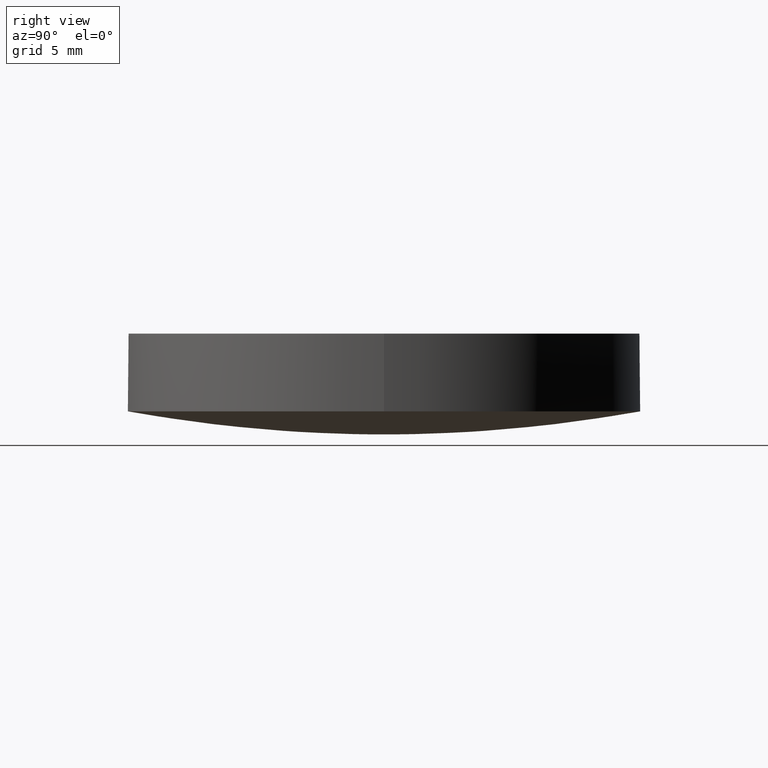
[diagram: clean part render]
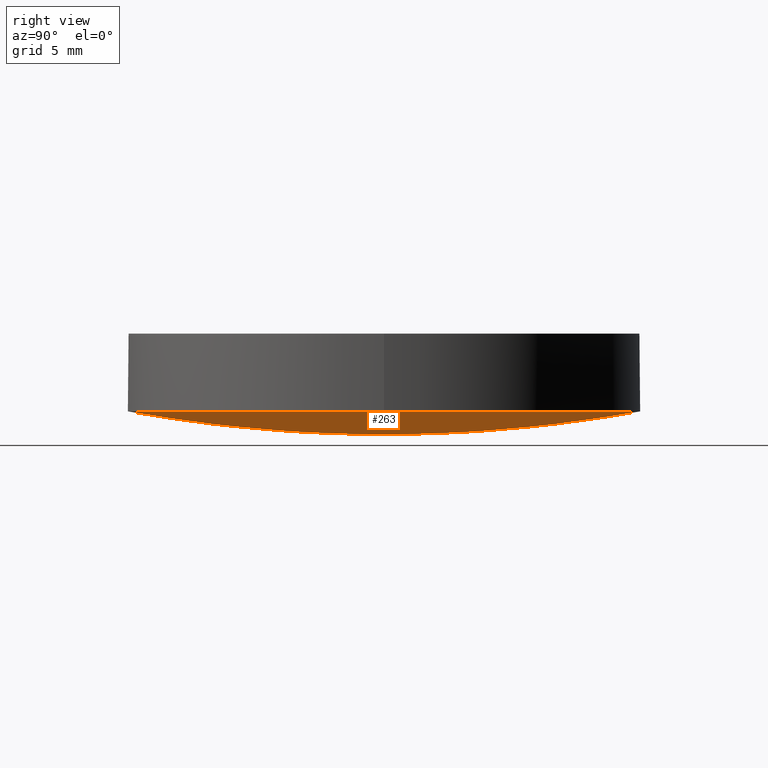
[diagram: same view with one face highlighted and labeled with its STEP entity id]
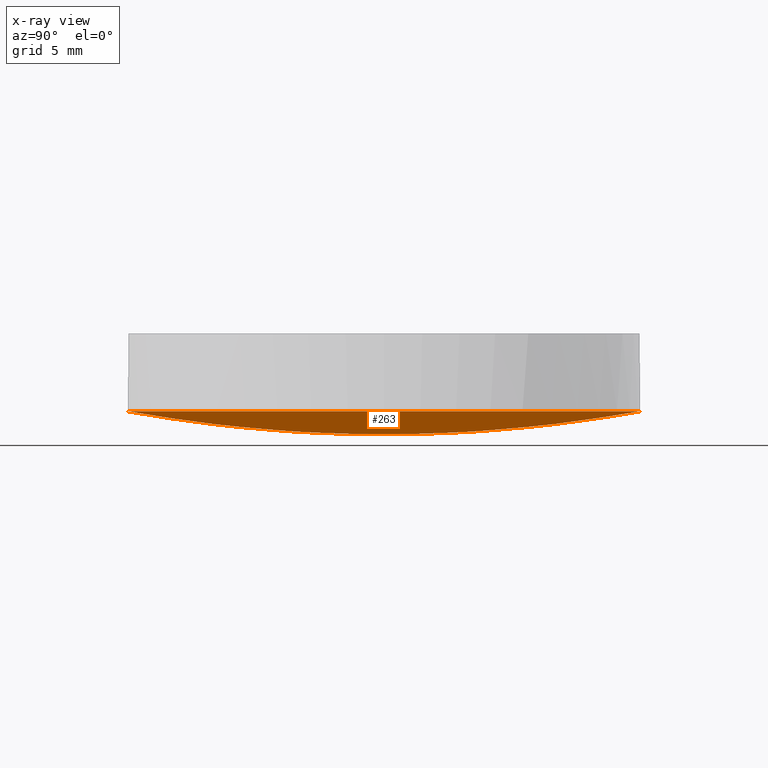
[diagram: x-ray of the same camera — body ghosted, the highlighted face saturated]
A machine part, right view. The second image highlights one B-rep face of the part: STEP entity #263.
The next image is the same camera in x-ray: the body ghosted, the highlighted face saturated — about 0% of this face is hidden behind the body in this view.
In plain terms, the highlighted face is a freeform B-spline surface patch.
Its self-contained STEP definition (entity closure, byte-faithful):
#10 = CARTESIAN_POINT ( 'NONE',  ( -0.7056909850177069954, 0.7056909850177069954, 0.000000000000000000 ) ) ;
#12 = CARTESIAN_POINT ( 'NONE',  ( 0.000000000000000000, 0.000000000000000000, 0.000000000000000000 ) ) ;
#13 = CARTESIAN_POINT ( 'NONE',  ( -4.753890723760700398E-16, -3.881846363433560043, 0.1011880740004540008 ) ) ;
#15 = CARTESIAN_POINT ( 'NONE',  ( 0.000000000000000000, 2.117681902288059970, 0.02132316921280770147 ) ) ;
#17 = CARTESIAN_POINT ( 'NONE',  ( 0.000000000000000000, 0.000000000000000000, 0.000000000000000000 ) ) ;
#18 = CARTESIAN_POINT ( 'NONE',  ( 0.000000000000000000, 5.646186924660569595, 0.2208187616476849913 ) ) ;
#21 = CARTESIAN_POINT ( 'NONE',  ( 12.69999999999999929, -2.332952152375710015E-15, 1.142824642375869892 ) ) ;
#23 = CARTESIAN_POINT ( 'NONE',  ( -7.057820453293380147, -7.057820453293380147, 0.3483339205862859833 ) ) ;
#25 = B_SPLINE_CURVE_WITH_KNOTS ( 'NONE', 3,
 ( #234, #50, #140, #146, #233, #172, #13, #78, #110, #204 ),
 .UNSPECIFIED., .F., .F.,
 ( 4, 1, 1, 1, 1, 1, 1, 4 ),
 ( 0.000000000000000000, 0.2934918748177540171, 0.3352534923770330022, 0.4186732724612799994, 0.5851388632198070150, 0.6682250307714420190, 0.8341866061546360234, 1.000000000000000000 ),
 .UNSPECIFIED. ) ;
#26 = CARTESIAN_POINT ( 'NONE',  ( 3.881846363433560043, -7.130836085641050103E-16, 0.1011880740004540008 ) ) ;
#47 = CARTESIAN_POINT ( 'NONE',  ( 0.7056909850177069954, -0.7056909850177069954, 0.000000000000000000 ) ) ;
#48 = CARTESIAN_POINT ( 'NONE',  ( 0.000000000000000000, 0.000000000000000000, 0.000000000000000000 ) ) ;
#50 = CARTESIAN_POINT ( 'NONE',  ( -1.404722717283039960E-15, -11.47043146041010075, 0.9228980148827420349 ) ) ;
#51 = CARTESIAN_POINT ( 'NONE',  ( 0.000000000000000000, 8.291244220368971796, 0.4872908528978099896 ) ) ;
#52 = CARTESIAN_POINT ( 'NONE',  ( 0.000000000000000000, 0.000000000000000000, 0.000000000000000000 ) ) ;
#53 = CARTESIAN_POINT ( 'NONE',  ( -5.646186924660570483, 5.646186924660570483, 0.2208187616476849913 ) ) ;
#55 = CARTESIAN_POINT ( 'NONE',  ( -1.231959341978499956E-15, -10.05971144362800018, 0.7061987570028900318 ) ) ;
#57 = CARTESIAN_POINT ( 'NONE',  ( 11.47043146041010075, 11.47043146041010075, 0.9228980148827421459 ) ) ;
#59 = CARTESIAN_POINT ( 'NONE',  ( 10.05971144362800018, -10.05971144362800018, 0.7061987570028901429 ) ) ;
#61 = CARTESIAN_POINT ( 'NONE',  ( -5.646186924660570483, -5.646186924660570483, 0.2208187616476849913 ) ) ;
#64 = CARTESIAN_POINT ( 'NONE',  ( -3.851859888774471706E-31, 12.70000000000000284, 1.142824642375869892 ) ) ;
#67 = CARTESIAN_POINT ( 'NONE',  ( 0.000000000000000000, 12.69999999999999929, 1.142824642375869892 ) ) ;
#69 = VERTEX_POINT ( 'NONE', #325 ) ;
#75 = ORIENTED_EDGE ( 'NONE', *, *, #121, .T. ) ;
#78 = CARTESIAN_POINT ( 'NONE',  ( -2.593412363249349958E-16, -2.117681902288059970, 0.02132316921280770147 ) ) ;
#83 = CARTESIAN_POINT ( 'NONE',  ( -10.05971144362800018, 10.05971144362800018, 0.7061987570028901429 ) ) ;
#85 = CARTESIAN_POINT ( 'NONE',  ( -2.117681902288059970, 1.296706181624679909E-16, 0.02132316921280770147 ) ) ;
#87 = CARTESIAN_POINT ( 'NONE',  ( 0.000000000000000000, 11.47043146041010075, 0.9228980148827420349 ) ) ;
#89 = CARTESIAN_POINT ( 'NONE',  ( -3.881846363433560043, 2.376945361880350199E-16, 0.1011880740004540008 ) ) ;
#91 = CARTESIAN_POINT ( 'NONE',  ( 0.000000000000000000, 12.69999999999999929, 1.142824642375869892 ) ) ;
#97 = ORIENTED_EDGE ( 'NONE', *, *, #298, .T. ) ;
#104 = ORIENTED_EDGE ( 'NONE', *, *, #109, .F. ) ;
#109 = EDGE_CURVE ( 'NONE', #189, #227, #229, .T. ) ;
#110 = CARTESIAN_POINT ( 'NONE',  ( -8.642222059890769995E-17, -0.7056909850177069954, 0.000000000000000000 ) ) ;
#111 = CARTESIAN_POINT ( 'NONE',  ( 2.117681902288059970, 2.117681902288059970, 0.02132316921280770147 ) ) ;
#112 = CARTESIAN_POINT ( 'NONE',  ( -8.291244220368971796, 5.076922847711930194E-16, 0.4872908528978099896 ) ) ;
#113 = CARTESIAN_POINT ( 'NONE',  ( 0.000000000000000000, 7.057820453293380147, 0.3483339205862859833 ) ) ;
#114 = CIRCLE ( 'NONE', #393, 12.70000000000000284 ) ;
#115 = CARTESIAN_POINT ( 'NONE',  ( -3.881846363433560043, -3.881846363433560043, 0.1011880740004540008 ) ) ;
#117 = CARTESIAN_POINT ( 'NONE',  ( 2.117681902288059970, -2.117681902288059970, 0.02132316921280770147 ) ) ;
#118 = CARTESIAN_POINT ( 'NONE',  ( 0.000000000000000000, 2.117681902288059970, 0.02132316921280770147 ) ) ;
#119 = CARTESIAN_POINT ( 'NONE',  ( 0.000000000000000000, 5.646186924660569595, 0.2208187616476849913 ) ) ;
#121 = EDGE_CURVE ( 'NONE', #189, #69, #154, .T. ) ;
#122 = CARTESIAN_POINT ( 'NONE',  ( -7.057820453293380147, 7.057820453293380147, 0.3483339205862859833 ) ) ;
#127 = CARTESIAN_POINT ( 'NONE',  ( 0.000000000000000000, 0.000000000000000000, 0.000000000000000000 ) ) ;
#128 = CARTESIAN_POINT ( 'NONE',  ( -3.851859888774471706E-31, 12.70000000000000284, 1.142824642375869892 ) ) ;
#130 = CARTESIAN_POINT ( 'NONE',  ( 12.69999999999999929, -12.69999999999999929, 1.142824642375869892 ) ) ;
#139 = EDGE_CURVE ( 'NONE', #69, #193, #114, .T. ) ;
#140 = CARTESIAN_POINT ( 'NONE',  ( -1.231959341978499956E-15, -10.05971144362800018, 0.7061987570028900318 ) ) ;
#142 = CARTESIAN_POINT ( 'NONE',  ( -0.7056909850177069954, -0.7056909850177069954, 0.000000000000000000 ) ) ;
#143 = CARTESIAN_POINT ( 'NONE',  ( 0.000000000000000000, 0.000000000000000000, 0.000000000000000000 ) ) ;
#144 = CARTESIAN_POINT ( 'NONE',  ( 0.000000000000000000, 3.881846363433560043, 0.1011880740004540008 ) ) ;
#145 = DIRECTION ( 'NONE',  ( -1.000000000000000000, 0.000000000000000000, 0.000000000000000000 ) ) ;
#146 = CARTESIAN_POINT ( 'NONE',  ( -1.015384569542389983E-15, -8.291244220368971796, 0.4872908528978099896 ) ) ;
#147 = CARTESIAN_POINT ( 'NONE',  ( -3.881846363433560043, 3.881846363433560043, 0.1011880740004540008 ) ) ;
#149 = CARTESIAN_POINT ( 'NONE',  ( -11.47043146041010075, -11.47043146041010075, 0.9228980148827421459 ) ) ;
#150 = CARTESIAN_POINT ( 'NONE',  ( 1.734723475976807094E-15, -1.345898117247522881E-15, 1.142824642375869892 ) ) ;
#151 = CARTESIAN_POINT ( 'NONE',  ( 0.000000000000000000, 7.057820453293380147, 0.3483339205862859833 ) ) ;
#153 = CARTESIAN_POINT ( 'NONE',  ( 0.000000000000000000, 10.05971144362800018, 0.7061987570028900318 ) ) ;
#154 = CIRCLE ( 'NONE', #332, 12.70000000000000284 ) ;
#172 = CARTESIAN_POINT ( 'NONE',  ( -6.914584744673199746E-16, -5.646186924660569595, 0.2208187616476849913 ) ) ;
#173 = CARTESIAN_POINT ( 'NONE',  ( 0.000000000000000000, 0.000000000000000000, 0.000000000000000000 ) ) ;
#175 = CARTESIAN_POINT ( 'NONE',  ( -5.646186924660569595, 3.457292372336599873E-16, 0.2208187616476849913 ) ) ;
#176 = CARTESIAN_POINT ( 'NONE',  ( 1.734723475976807094E-15, -1.345898117247522881E-15, 1.142824642375869892 ) ) ;
#177 = CARTESIAN_POINT ( 'NONE',  ( 0.000000000000000000, 7.057820453293380147, 0.3483339205862859833 ) ) ;
#180 = CARTESIAN_POINT ( 'NONE',  ( -11.47043146041010075, 7.023613586415189939E-16, 0.9228980148827420349 ) ) ;
#183 = CARTESIAN_POINT ( 'NONE',  ( 5.646186924660570483, -5.646186924660570483, 0.2208187616476849913 ) ) ;
#185 = CARTESIAN_POINT ( 'NONE',  ( -12.69999999999999929, 12.69999999999999929, 1.142824642375869892 ) ) ;
#189 = VERTEX_POINT ( 'NONE', #64 ) ;
#191 = CARTESIAN_POINT ( 'NONE',  ( -12.69999999999999929, -12.69999999999999929, 1.142824642375869892 ) ) ;
#193 = VERTEX_POINT ( 'NONE', #405 ) ;
#199 = ORIENTED_EDGE ( 'NONE', *, *, #139, .T. ) ;
#203 = CARTESIAN_POINT ( 'NONE',  ( 0.000000000000000000, 11.47043146041010075, 0.9228980148827420349 ) ) ;
#204 = CARTESIAN_POINT ( 'NONE',  ( 0.000000000000000000, 0.000000000000000000, 0.000000000000000000 ) ) ;
#206 = CARTESIAN_POINT ( 'NONE',  ( 7.057820453293370377, -7.057820453293380147, 0.3483339205862859833 ) ) ;
#208 = CARTESIAN_POINT ( 'NONE',  ( -2.117681902288059970, -2.117681902288059970, 0.02132316921280770147 ) ) ;
#211 = CARTESIAN_POINT ( 'NONE',  ( 12.69999999999999929, 12.69999999999999929, 1.142824642375869892 ) ) ;
#213 = CARTESIAN_POINT ( 'NONE',  ( 3.881846363433560043, 3.881846363433549829, 0.1011880740004540008 ) ) ;
#216 = CARTESIAN_POINT ( 'NONE',  ( -11.47043146041010075, 11.47043146041010075, 0.9228980148827421459 ) ) ;
#227 = VERTEX_POINT ( 'NONE', #127 ) ;
#229 = B_SPLINE_CURVE_WITH_KNOTS ( 'NONE', 3,
 ( #128, #203, #245, #51, #113, #336, #392, #118, #269, #239 ),
 .UNSPECIFIED., .F., .F.,
 ( 4, 1, 1, 1, 1, 1, 1, 4 ),
 ( 0.000000000000000000, 0.2934918748177540171, 0.3352534923770330022, 0.4186732724612799994, 0.5851388632198070150, 0.6682250307714420190, 0.8341866061546360234, 1.000000000000000000 ),
 .UNSPECIFIED. ) ;
#231 = EDGE_LOOP ( 'NONE', ( #199, #97, #104, #75 ) ) ;
#233 = CARTESIAN_POINT ( 'NONE',  ( -8.643337227082449863E-16, -7.057820453293380147, 0.3483339205862859833 ) ) ;
#234 = CARTESIAN_POINT ( 'NONE',  ( -1.555301434917141588E-15, -12.70000000000000462, 1.142824642375869892 ) ) ;
#238 = CARTESIAN_POINT ( 'NONE',  ( -6.914584744673199746E-16, -5.646186924660569595, 0.2208187616476849913 ) ) ;
#239 = CARTESIAN_POINT ( 'NONE',  ( 0.000000000000000000, 0.000000000000000000, 0.000000000000000000 ) ) ;
#240 = CARTESIAN_POINT ( 'NONE',  ( 7.057820453293380147, -1.296500584062369945E-15, 0.3483339205862859833 ) ) ;
#244 = CARTESIAN_POINT ( 'NONE',  ( -1.015384569542389983E-15, -8.291244220368971796, 0.4872908528978099896 ) ) ;
#245 = CARTESIAN_POINT ( 'NONE',  ( 0.000000000000000000, 10.05971144362800018, 0.7061987570028900318 ) ) ;
#246 = CARTESIAN_POINT ( 'NONE',  ( 5.646186924660570483, 5.646186924660570483, 0.2208187616476849913 ) ) ;
#248 = CARTESIAN_POINT ( 'NONE',  ( 8.291244220368971796, 8.291244220368971796, 0.4872908528978099896 ) ) ;
#261 = CARTESIAN_POINT ( 'NONE',  ( 0.7056909850177069954, 0.7056909850177069954, 0.000000000000000000 ) ) ;
#262 = CARTESIAN_POINT ( 'NONE',  ( 0.000000000000000000, 0.7056909850177069954, 0.000000000000000000 ) ) ;
#263 = ADVANCED_FACE ( 'NONE', ( #403 ), #293, .T. ) ;
#264 = CARTESIAN_POINT ( 'NONE',  ( 0.000000000000000000, 2.117681902288059970, 0.02132316921280770147 ) ) ;
#265 = CARTESIAN_POINT ( 'NONE',  ( -2.593412363249349958E-16, -2.117681902288059970, 0.02132316921280770147 ) ) ;
#268 = CARTESIAN_POINT ( 'NONE',  ( 8.291244220368971796, -1.523076854313580044E-15, 0.4872908528978099896 ) ) ;
#269 = CARTESIAN_POINT ( 'NONE',  ( 0.000000000000000000, 0.7056909850177069954, 0.000000000000000000 ) ) ;
#270 = CARTESIAN_POINT ( 'NONE',  ( -8.291244220368971796, -8.291244220368971796, 0.4872908528978099896 ) ) ;
#271 = DIRECTION ( 'NONE',  ( -0.000000000000000000, -0.000000000000000000, -1.000000000000000000 ) ) ;
#272 = CARTESIAN_POINT ( 'NONE',  ( 11.47043146041010075, -11.47043146041010075, 0.9228980148827421459 ) ) ;
#274 = CARTESIAN_POINT ( 'NONE',  ( 10.05971144362800018, 10.05971144362800018, 0.7061987570028901429 ) ) ;
#282 = CARTESIAN_POINT ( 'NONE',  ( -1.555301434917140010E-15, -12.69999999999999929, 1.142824642375869892 ) ) ;
#293 =( BOUNDED_SURFACE ( )  B_SPLINE_SURFACE ( 3, 2, ( 
 ( #67, #185, #309, #191, #282, #130, #21, #211, #91 ),
 ( #87, #216, #180, #149, #369, #272, #339, #57, #399 ),
 ( #153, #83, #362, #335, #55, #59, #391, #274, #401 ),
 ( #337, #303, #112, #270, #244, #306, #268, #248, #364 ),
 ( #177, #122, #371, #23, #296, #206, #240, #343, #151 ),
 ( #119, #53, #175, #61, #238, #183, #299, #246, #18 ),
 ( #144, #147, #89, #115, #301, #396, #26, #213, #341 ),
 ( #15, #394, #85, #208, #265, #117, #366, #111, #264 ),
 ( #328, #10, #330, #142, #331, #47, #294, #261, #262 ),
 ( #12, #17, #387, #143, #52, #173, #48, #390, #356 ) ),
 .UNSPECIFIED., .F., .T., .T. ) 
 B_SPLINE_SURFACE_WITH_KNOTS ( ( 4, 1, 1, 1, 1, 1, 1, 4 ),
 ( 3, 2, 2, 2, 3 ),
 ( 0.000000000000000000, 0.2934918748177540171, 0.3352534923770330022, 0.4186732724612799994, 0.5851388632198070150, 0.6682250307714420190, 0.8341866061546360234, 1.000000000000000000 ),
 ( 0.000000000000000000, 90.00000000000000000, 180.0000000000000000, 270.0000000000000000, 360.0000000000000000 ),
 .UNSPECIFIED. ) 
 GEOMETRIC_REPRESENTATION_ITEM ( )  RATIONAL_B_SPLINE_SURFACE ( (
 ( 1.000000000000000000, 0.7071067811865480168, 1.000000000000000000, 0.7071067811865480168, 1.000000000000000000, 0.7071067811865480168, 1.000000000000000000, 0.7071067811865480168, 1.000000000000000000),
 ( 1.000000000000000000, 0.7071067811865480168, 1.000000000000000000, 0.7071067811865480168, 1.000000000000000000, 0.7071067811865480168, 1.000000000000000000, 0.7071067811865480168, 1.000000000000000000),
 ( 1.000000000000000000, 0.7071067811865480168, 1.000000000000000000, 0.7071067811865480168, 1.000000000000000000, 0.7071067811865480168, 1.000000000000000000, 0.7071067811865480168, 1.000000000000000000),
 ( 1.000000000000000000, 0.7071067811865480168, 1.000000000000000000, 0.7071067811865480168, 1.000000000000000000, 0.7071067811865480168, 1.000000000000000000, 0.7071067811865480168, 1.000000000000000000),
 ( 1.000000000000000000, 0.7071067811865480168, 1.000000000000000000, 0.7071067811865480168, 1.000000000000000000, 0.7071067811865480168, 1.000000000000000000, 0.7071067811865480168, 1.000000000000000000),
 ( 1.000000000000000000, 0.7071067811865480168, 1.000000000000000000, 0.7071067811865480168, 1.000000000000000000, 0.7071067811865480168, 1.000000000000000000, 0.7071067811865480168, 1.000000000000000000),
 ( 1.000000000000000000, 0.7071067811865480168, 1.000000000000000000, 0.7071067811865480168, 1.000000000000000000, 0.7071067811865480168, 1.000000000000000000, 0.7071067811865480168, 1.000000000000000000),
 ( 1.000000000000000000, 0.7071067811865480168, 1.000000000000000000, 0.7071067811865480168, 1.000000000000000000, 0.7071067811865480168, 1.000000000000000000, 0.7071067811865480168, 1.000000000000000000),
 ( 1.000000000000000000, 0.7071067811865480168, 1.000000000000000000, 0.7071067811865480168, 1.000000000000000000, 0.7071067811865480168, 1.000000000000000000, 0.7071067811865480168, 1.000000000000000000),
 ( 1.000000000000000000, 0.7071067811865480168, 1.000000000000000000, 0.7071067811865480168, 1.000000000000000000, 0.7071067811865480168, 1.000000000000000000, 0.7071067811865480168, 1.000000000000000000) ) ) 
 REPRESENTATION_ITEM ( '' )  SURFACE ( )  );
#294 = CARTESIAN_POINT ( 'NONE',  ( 0.7056909850177069954, -1.296333308983620122E-16, 0.000000000000000000 ) ) ;
#296 = CARTESIAN_POINT ( 'NONE',  ( -8.643337227082449863E-16, -7.057820453293380147, 0.3483339205862859833 ) ) ;
#298 = EDGE_CURVE ( 'NONE', #193, #227, #25, .T. ) ;
#299 = CARTESIAN_POINT ( 'NONE',  ( 5.646186924660569595, -1.037187711700979962E-15, 0.2208187616476849913 ) ) ;
#301 = CARTESIAN_POINT ( 'NONE',  ( -4.753890723760700398E-16, -3.881846363433560043, 0.1011880740004540008 ) ) ;
#303 = CARTESIAN_POINT ( 'NONE',  ( -8.291244220368971796, 8.291244220368971796, 0.4872908528978099896 ) ) ;
#306 = CARTESIAN_POINT ( 'NONE',  ( 8.291244220368971796, -8.291244220368971796, 0.4872908528978099896 ) ) ;
#309 = CARTESIAN_POINT ( 'NONE',  ( -12.69999999999999929, 7.776507174585690191E-16, 1.142824642375869892 ) ) ;
#325 = CARTESIAN_POINT ( 'NONE',  ( 12.70000000000000462, -8.881784197001248379E-16, 1.142824642375869892 ) ) ;
#328 = CARTESIAN_POINT ( 'NONE',  ( 0.000000000000000000, 0.7056909850177069954, 0.000000000000000000 ) ) ;
#330 = CARTESIAN_POINT ( 'NONE',  ( -0.7056909850177069954, 4.321111029945389928E-17, 0.000000000000000000 ) ) ;
#331 = CARTESIAN_POINT ( 'NONE',  ( -8.642222059890769995E-17, -0.7056909850177069954, 0.000000000000000000 ) ) ;
#332 = AXIS2_PLACEMENT_3D ( 'NONE', #150, #395, #370 ) ;
#335 = CARTESIAN_POINT ( 'NONE',  ( -10.05971144362800018, -10.05971144362800018, 0.7061987570028901429 ) ) ;
#336 = CARTESIAN_POINT ( 'NONE',  ( 0.000000000000000000, 5.646186924660569595, 0.2208187616476849913 ) ) ;
#337 = CARTESIAN_POINT ( 'NONE',  ( 0.000000000000000000, 8.291244220368971796, 0.4872908528978099896 ) ) ;
#339 = CARTESIAN_POINT ( 'NONE',  ( 11.47043146041010075, -2.107084075924560334E-15, 0.9228980148827420349 ) ) ;
#341 = CARTESIAN_POINT ( 'NONE',  ( 0.000000000000000000, 3.881846363433560043, 0.1011880740004540008 ) ) ;
#343 = CARTESIAN_POINT ( 'NONE',  ( 7.057820453293380147, 7.057820453293370377, 0.3483339205862859833 ) ) ;
#356 = CARTESIAN_POINT ( 'NONE',  ( 0.000000000000000000, 0.000000000000000000, 0.000000000000000000 ) ) ;
#362 = CARTESIAN_POINT ( 'NONE',  ( -10.05971144362800018, 6.159796709892499782E-16, 0.7061987570028900318 ) ) ;
#364 = CARTESIAN_POINT ( 'NONE',  ( 0.000000000000000000, 8.291244220368971796, 0.4872908528978099896 ) ) ;
#366 = CARTESIAN_POINT ( 'NONE',  ( 2.117681902288059970, -3.890118544874019760E-16, 0.02132316921280770147 ) ) ;
#369 = CARTESIAN_POINT ( 'NONE',  ( -1.404722717283039960E-15, -11.47043146041010075, 0.9228980148827420349 ) ) ;
#370 = DIRECTION ( 'NONE',  ( -1.000000000000000000, 0.000000000000000000, 0.000000000000000000 ) ) ;
#371 = CARTESIAN_POINT ( 'NONE',  ( -7.057820453293380147, 4.321668613541229862E-16, 0.3483339205862859833 ) ) ;
#387 = CARTESIAN_POINT ( 'NONE',  ( 0.000000000000000000, 0.000000000000000000, 0.000000000000000000 ) ) ;
#390 = CARTESIAN_POINT ( 'NONE',  ( 0.000000000000000000, 0.000000000000000000, 0.000000000000000000 ) ) ;
#391 = CARTESIAN_POINT ( 'NONE',  ( 10.05971144362800018, -1.847939012967749934E-15, 0.7061987570028900318 ) ) ;
#392 = CARTESIAN_POINT ( 'NONE',  ( 0.000000000000000000, 3.881846363433560043, 0.1011880740004540008 ) ) ;
#393 = AXIS2_PLACEMENT_3D ( 'NONE', #176, #271, #145 ) ;
#394 = CARTESIAN_POINT ( 'NONE',  ( -2.117681902288059970, 2.117681902288059970, 0.02132316921280770147 ) ) ;
#395 = DIRECTION ( 'NONE',  ( -0.000000000000000000, -0.000000000000000000, -1.000000000000000000 ) ) ;
#396 = CARTESIAN_POINT ( 'NONE',  ( 3.881846363433560043, -3.881846363433560043, 0.1011880740004540008 ) ) ;
#399 = CARTESIAN_POINT ( 'NONE',  ( 0.000000000000000000, 11.47043146041010075, 0.9228980148827420349 ) ) ;
#401 = CARTESIAN_POINT ( 'NONE',  ( 0.000000000000000000, 10.05971144362800018, 0.7061987570028900318 ) ) ;
#403 = FACE_OUTER_BOUND ( 'NONE', #231, .T. ) ;
#405 = CARTESIAN_POINT ( 'NONE',  ( -1.555301434917141588E-15, -12.70000000000000462, 1.142824642375869892 ) ) ;